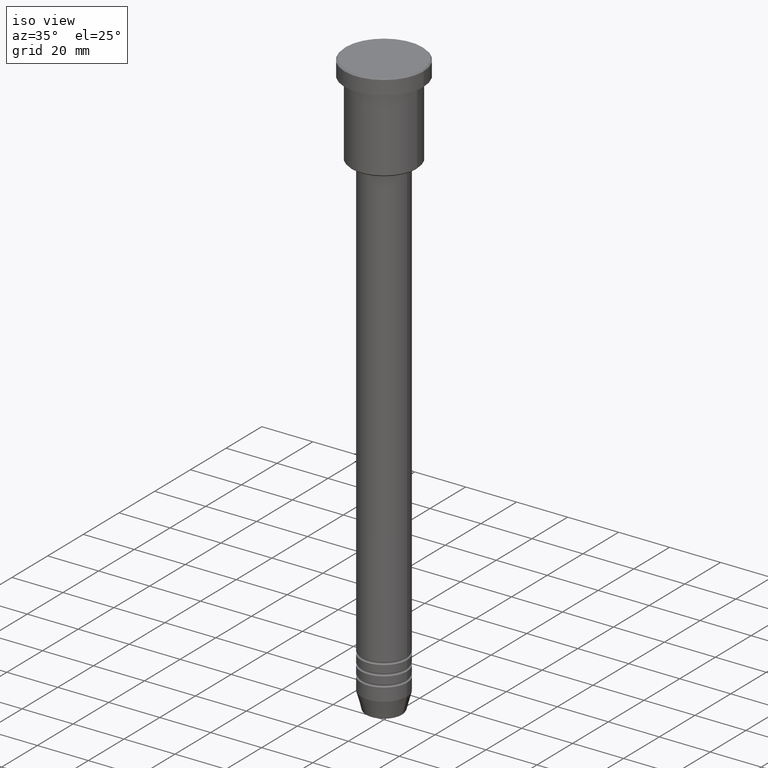
[diagram: clean part render]
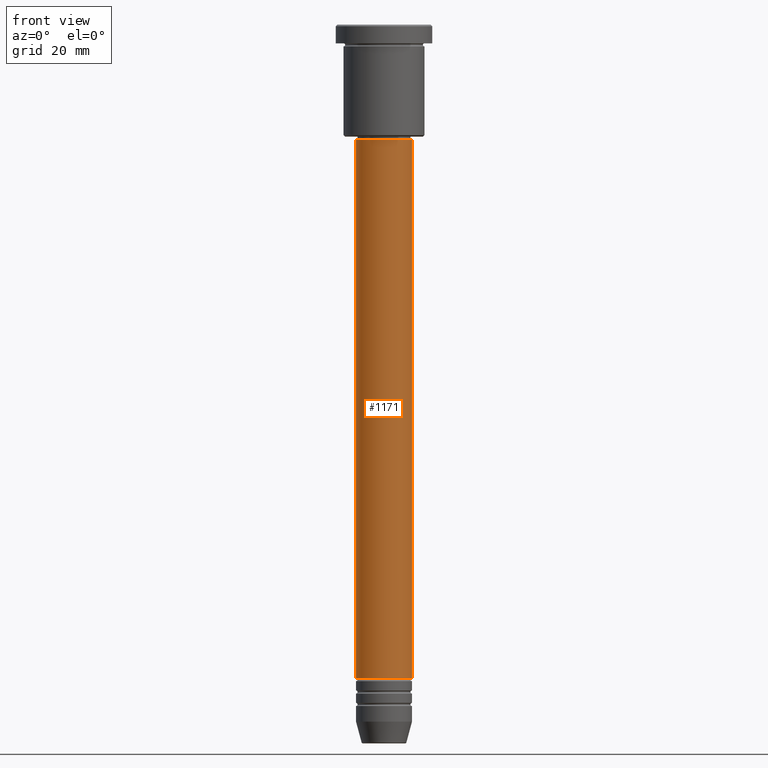
[diagram: tour spotlight — one face highlighted and labeled with its STEP entity id]
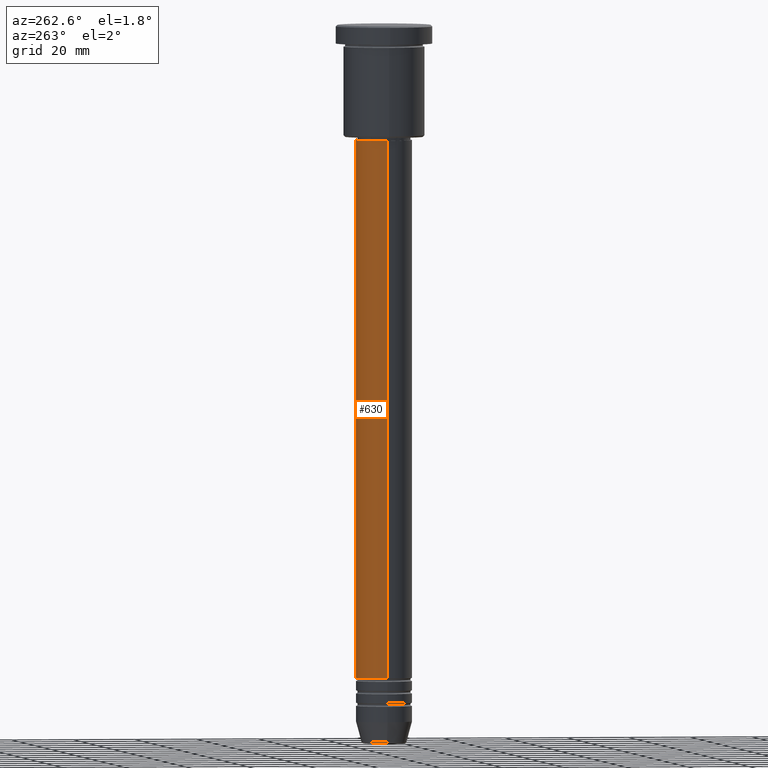
[diagram: tour spotlight — one face highlighted and labeled with its STEP entity id]
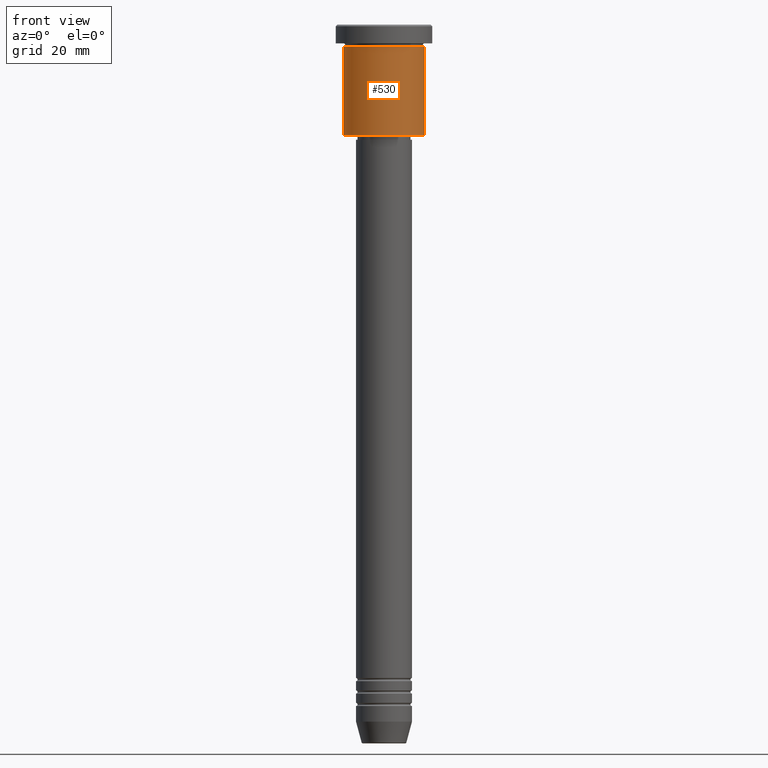
[diagram: tour spotlight — one face highlighted and labeled with its STEP entity id]
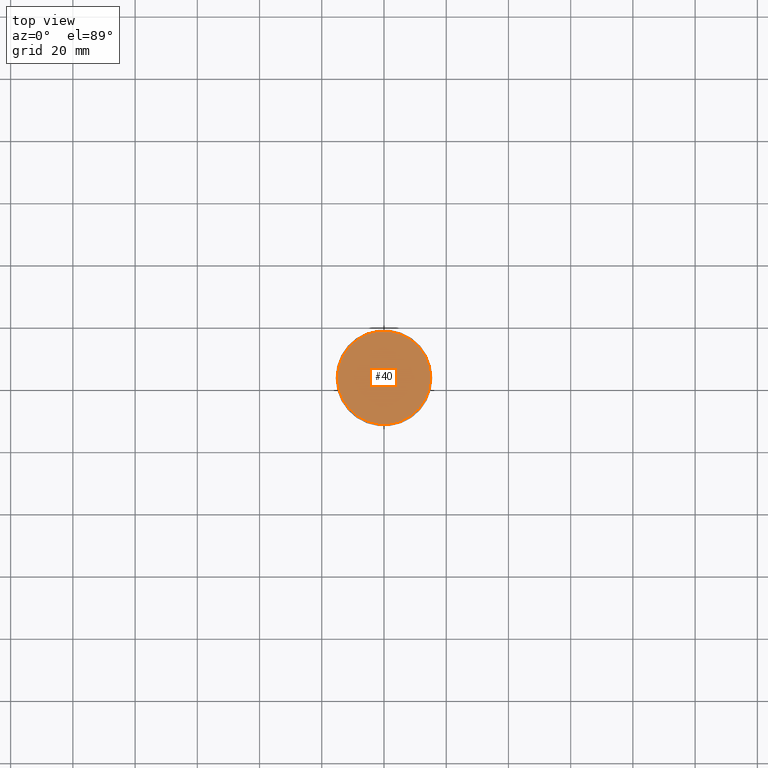
[diagram: tour spotlight — one face highlighted and labeled with its STEP entity id]
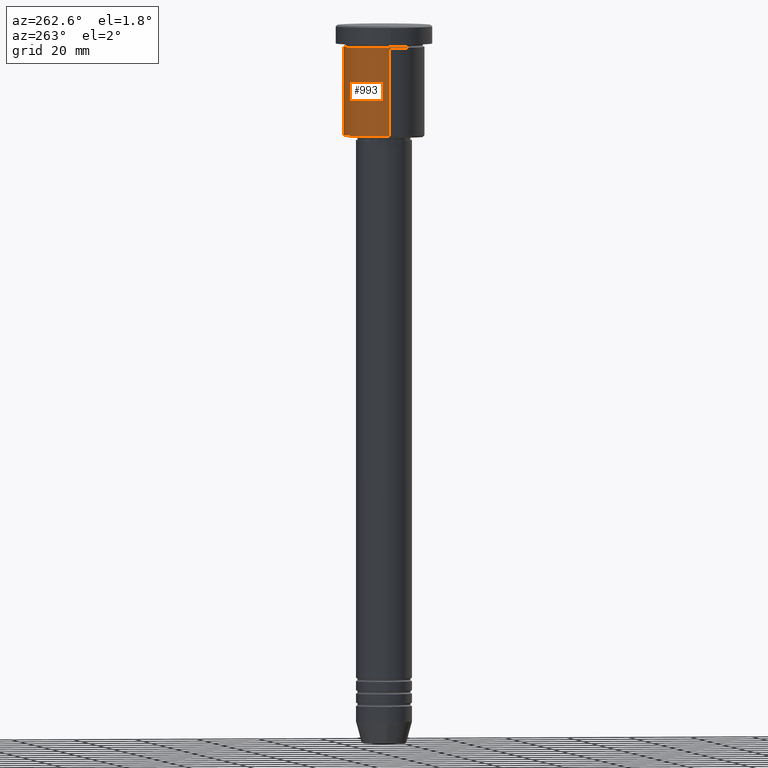
[diagram: tour spotlight — one face highlighted and labeled with its STEP entity id]
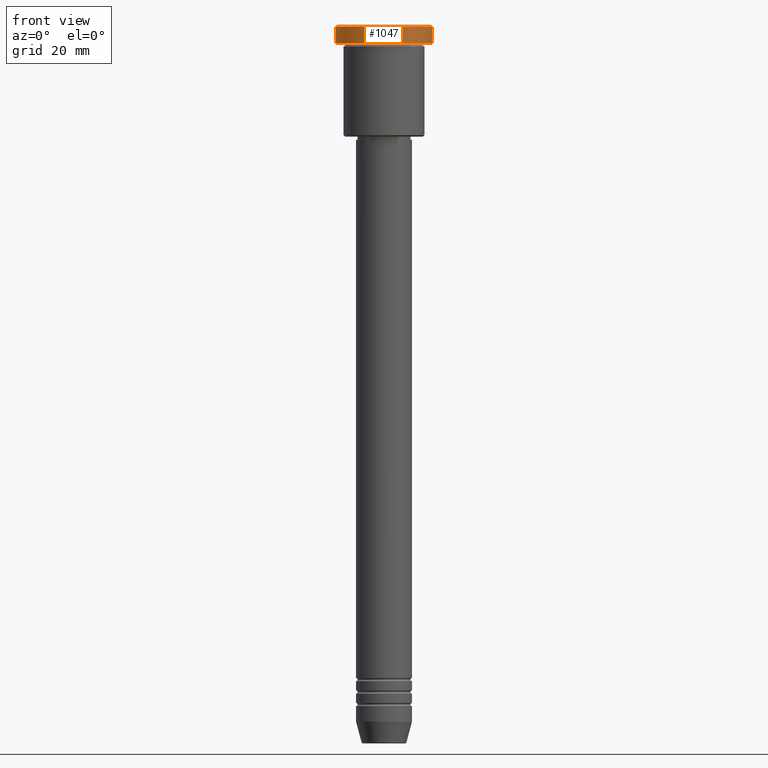
[diagram: tour spotlight — one face highlighted and labeled with its STEP entity id]
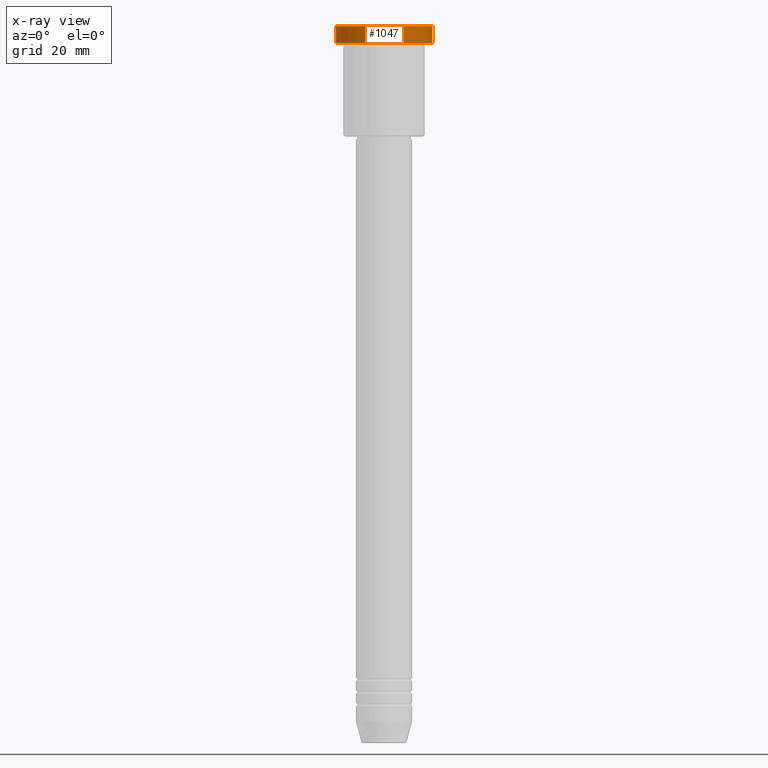
[diagram: x-ray of the same camera — body ghosted, this tour face saturated]
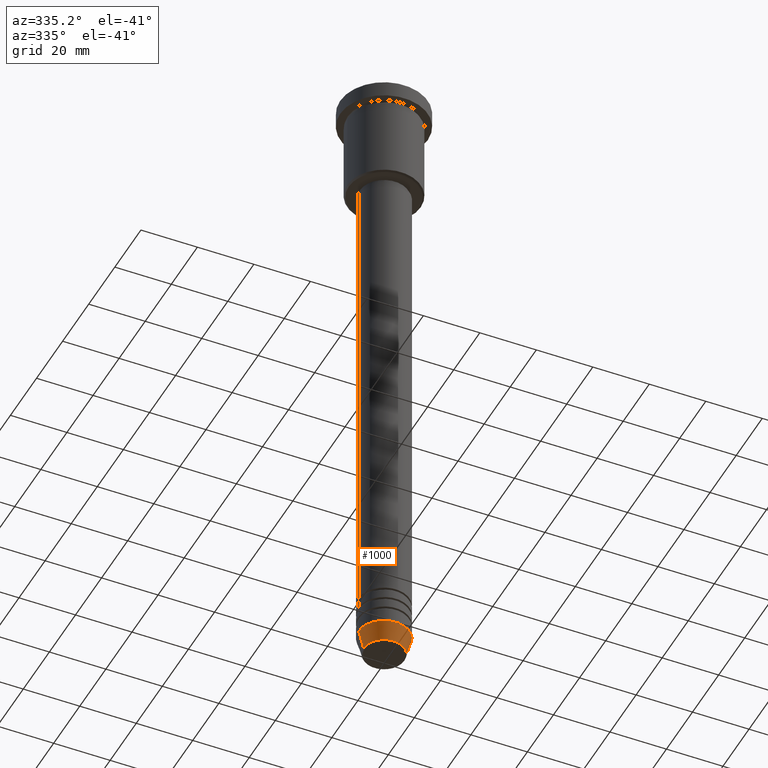
[diagram: tour spotlight — one face highlighted and labeled with its STEP entity id]
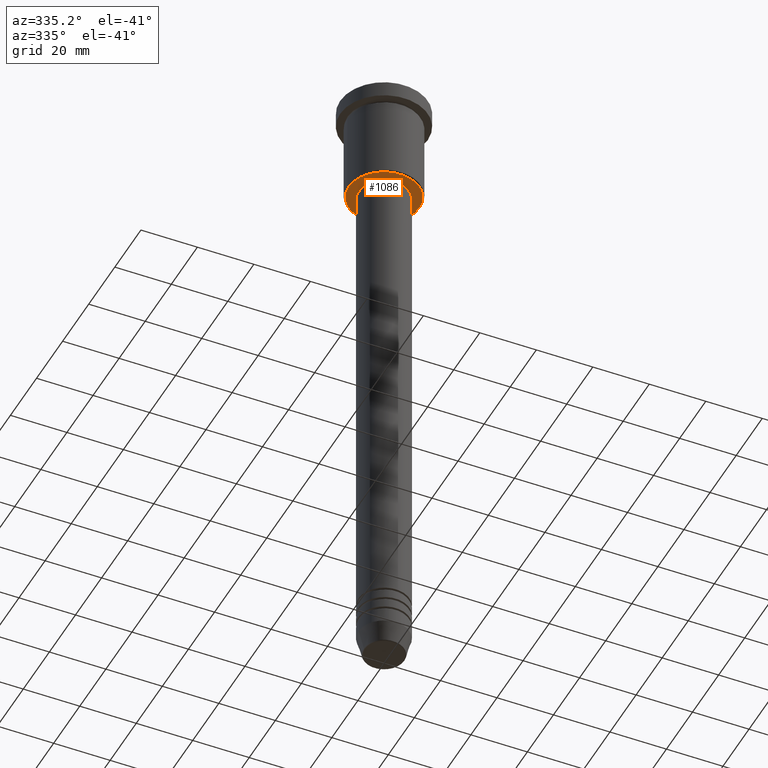
[diagram: tour spotlight — one face highlighted and labeled with its STEP entity id]
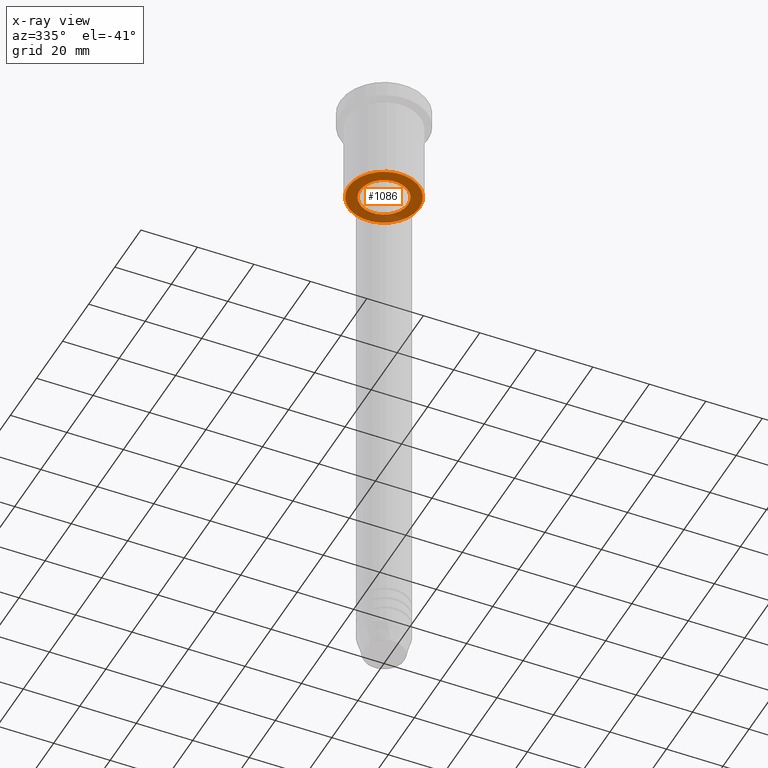
[diagram: x-ray of the same camera — body ghosted, this tour face saturated]
A machine part: a face-by-face anatomy tour. The part has 43 B-rep faces; the first image is the clean iso view, then the 8 largest visible faces are spotlighted one at a time (largest first), each with its STEP entity span.

Face 1 — front view, entity #1171. In plain terms, the highlighted cylindrical surface (edge-blend (fillet) strip) has radius 9 mm, axis along (-0, -0, 1).
Definition (entity closure, byte-faithful):
#2 = DIRECTION ( 'NONE',  ( -0.000000000000000000, -0.000000000000000000, 1.000000000000000000 ) ) ;
#20 = CARTESIAN_POINT ( 'NONE',  ( -9.000000000000001776, 1.102182119232617911E-15, -209.9999999999999432 ) ) ;
#90 = EDGE_CURVE ( 'NONE', #363, #1011, #305, .T. ) ;
#147 = DIRECTION ( 'NONE',  ( -0.000000000000000000, -0.000000000000000000, 1.000000000000000000 ) ) ;
#185 = AXIS2_PLACEMENT_3D ( 'NONE', #768, #1135, #307 ) ;
#292 = CARTESIAN_POINT ( 'NONE',  ( 0.000000000000000000, 0.000000000000000000, -37.00000000000007105 ) ) ;
#301 = CYLINDRICAL_SURFACE ( 'NONE', #1178, 9.000000000000000000 ) ;
#305 = LINE ( 'NONE', #1055, #1052 ) ;
#307 = DIRECTION ( 'NONE',  ( 1.000000000000000000, 0.000000000000000000, 0.000000000000000000 ) ) ;
#315 = CARTESIAN_POINT ( 'NONE',  ( 9.000000000000001776, 0.000000000000000000, -209.9999999999999432 ) ) ;
#341 = CIRCLE ( 'NONE', #798, 8.999999999999998224 ) ;
#361 = VERTEX_POINT ( 'NONE', #1025 ) ;
#363 = VERTEX_POINT ( 'NONE', #20 ) ;
#454 = LINE ( 'NONE', #475, #973 ) ;
#459 = CIRCLE ( 'NONE', #185, 9.000000000000001776 ) ;
#468 = EDGE_CURVE ( 'NONE', #363, #472, #459, .T. ) ;
#472 = VERTEX_POINT ( 'NONE', #315 ) ;
#475 = CARTESIAN_POINT ( 'NONE',  ( 9.000000000000000000, 0.000000000000000000, 0.000000000000000000 ) ) ;
#504 = ORIENTED_EDGE ( 'NONE', *, *, #609, .T. ) ;
#568 = FACE_OUTER_BOUND ( 'NONE', #932, .T. ) ;
#609 = EDGE_CURVE ( 'NONE', #472, #361, #454, .T. ) ;
#740 = ORIENTED_EDGE ( 'NONE', *, *, #1006, .F. ) ;
#768 = CARTESIAN_POINT ( 'NONE',  ( 0.000000000000000000, 0.000000000000000000, -209.9999999999999432 ) ) ;
#798 = AXIS2_PLACEMENT_3D ( 'NONE', #292, #946, #1039 ) ;
#829 = DIRECTION ( 'NONE',  ( 1.000000000000000000, 0.000000000000000000, 0.000000000000000000 ) ) ;
#887 = ORIENTED_EDGE ( 'NONE', *, *, #90, .F. ) ;
#932 = EDGE_LOOP ( 'NONE', ( #887, #976, #504, #740 ) ) ;
#946 = DIRECTION ( 'NONE',  ( -0.000000000000000000, -0.000000000000000000, 1.000000000000000000 ) ) ;
#973 = VECTOR ( 'NONE', #1022, 1000.000000000000000 ) ;
#976 = ORIENTED_EDGE ( 'NONE', *, *, #468, .T. ) ;
#1006 = EDGE_CURVE ( 'NONE', #1011, #361, #341, .T. ) ;
#1011 = VERTEX_POINT ( 'NONE', #1134 ) ;
#1022 = DIRECTION ( 'NONE',  ( -0.000000000000000000, -0.000000000000000000, 1.000000000000000000 ) ) ;
#1025 = CARTESIAN_POINT ( 'NONE',  ( 8.999999999999998224, 0.000000000000000000, -37.00000000000007105 ) ) ;
#1039 = DIRECTION ( 'NONE',  ( 1.000000000000000000, 0.000000000000000000, 0.000000000000000000 ) ) ;
#1042 = CARTESIAN_POINT ( 'NONE',  ( 0.000000000000000000, 0.000000000000000000, 0.000000000000000000 ) ) ;
#1052 = VECTOR ( 'NONE', #147, 1000.000000000000000 ) ;
#1055 = CARTESIAN_POINT ( 'NONE',  ( -9.000000000000000000, 1.102182119232617714E-15, 0.000000000000000000 ) ) ;
#1134 = CARTESIAN_POINT ( 'NONE',  ( -8.999999999999998224, 1.102182119232617714E-15, -37.00000000000007105 ) ) ;
#1135 = DIRECTION ( 'NONE',  ( -0.000000000000000000, -0.000000000000000000, 1.000000000000000000 ) ) ;
#1171 = ADVANCED_FACE ( 'NONE', ( #568 ), #301, .T. ) ;
#1178 = AXIS2_PLACEMENT_3D ( 'NONE', #1042, #2, #829 ) ;

Face 2 — auxiliary view, entity #630. In plain terms, the highlighted cylindrical surface (edge-blend (fillet) strip) has radius 9 mm, axis along (-0, -0, 1).
Definition (entity closure, byte-faithful):
#13 = EDGE_CURVE ( 'NONE', #361, #1011, #415, .T. ) ;
#20 = CARTESIAN_POINT ( 'NONE',  ( -9.000000000000001776, 1.102182119232617911E-15, -209.9999999999999432 ) ) ;
#34 = CARTESIAN_POINT ( 'NONE',  ( 0.000000000000000000, 0.000000000000000000, -37.00000000000007105 ) ) ;
#90 = EDGE_CURVE ( 'NONE', #363, #1011, #305, .T. ) ;
#147 = DIRECTION ( 'NONE',  ( -0.000000000000000000, -0.000000000000000000, 1.000000000000000000 ) ) ;
#174 = CARTESIAN_POINT ( 'NONE',  ( 0.000000000000000000, 0.000000000000000000, 0.000000000000000000 ) ) ;
#223 = DIRECTION ( 'NONE',  ( 1.000000000000000000, 0.000000000000000000, 0.000000000000000000 ) ) ;
#227 = DIRECTION ( 'NONE',  ( 1.000000000000000000, 0.000000000000000000, 0.000000000000000000 ) ) ;
#239 = AXIS2_PLACEMENT_3D ( 'NONE', #174, #264, #645 ) ;
#260 = CYLINDRICAL_SURFACE ( 'NONE', #239, 9.000000000000000000 ) ;
#264 = DIRECTION ( 'NONE',  ( -0.000000000000000000, -0.000000000000000000, 1.000000000000000000 ) ) ;
#305 = LINE ( 'NONE', #1055, #1052 ) ;
#315 = CARTESIAN_POINT ( 'NONE',  ( 9.000000000000001776, 0.000000000000000000, -209.9999999999999432 ) ) ;
#361 = VERTEX_POINT ( 'NONE', #1025 ) ;
#363 = VERTEX_POINT ( 'NONE', #20 ) ;
#415 = CIRCLE ( 'NONE', #592, 8.999999999999998224 ) ;
#430 = ORIENTED_EDGE ( 'NONE', *, *, #1137, .T. ) ;
#450 = ORIENTED_EDGE ( 'NONE', *, *, #609, .F. ) ;
#454 = LINE ( 'NONE', #475, #973 ) ;
#472 = VERTEX_POINT ( 'NONE', #315 ) ;
#475 = CARTESIAN_POINT ( 'NONE',  ( 9.000000000000000000, 0.000000000000000000, 0.000000000000000000 ) ) ;
#519 = AXIS2_PLACEMENT_3D ( 'NONE', #689, #957, #227 ) ;
#592 = AXIS2_PLACEMENT_3D ( 'NONE', #34, #1038, #223 ) ;
#609 = EDGE_CURVE ( 'NONE', #472, #361, #454, .T. ) ;
#630 = ADVANCED_FACE ( 'NONE', ( #998 ), #260, .T. ) ;
#645 = DIRECTION ( 'NONE',  ( 1.000000000000000000, 0.000000000000000000, 0.000000000000000000 ) ) ;
#657 = CIRCLE ( 'NONE', #519, 9.000000000000001776 ) ;
#689 = CARTESIAN_POINT ( 'NONE',  ( 0.000000000000000000, 0.000000000000000000, -209.9999999999999432 ) ) ;
#838 = ORIENTED_EDGE ( 'NONE', *, *, #90, .T. ) ;
#957 = DIRECTION ( 'NONE',  ( -0.000000000000000000, -0.000000000000000000, 1.000000000000000000 ) ) ;
#973 = VECTOR ( 'NONE', #1022, 1000.000000000000000 ) ;
#998 = FACE_OUTER_BOUND ( 'NONE', #1050, .T. ) ;
#1011 = VERTEX_POINT ( 'NONE', #1134 ) ;
#1022 = DIRECTION ( 'NONE',  ( -0.000000000000000000, -0.000000000000000000, 1.000000000000000000 ) ) ;
#1025 = CARTESIAN_POINT ( 'NONE',  ( 8.999999999999998224, 0.000000000000000000, -37.00000000000007105 ) ) ;
#1038 = DIRECTION ( 'NONE',  ( -0.000000000000000000, -0.000000000000000000, 1.000000000000000000 ) ) ;
#1043 = ORIENTED_EDGE ( 'NONE', *, *, #13, .F. ) ;
#1050 = EDGE_LOOP ( 'NONE', ( #430, #838, #1043, #450 ) ) ;
#1052 = VECTOR ( 'NONE', #147, 1000.000000000000000 ) ;
#1055 = CARTESIAN_POINT ( 'NONE',  ( -9.000000000000000000, 1.102182119232617714E-15, 0.000000000000000000 ) ) ;
#1134 = CARTESIAN_POINT ( 'NONE',  ( -8.999999999999998224, 1.102182119232617714E-15, -37.00000000000007105 ) ) ;
#1137 = EDGE_CURVE ( 'NONE', #472, #363, #657, .T. ) ;

Face 3 — front view, entity #530. In plain terms, the highlighted cylindrical surface (partial cylindrical patch) has radius 13 mm, axis along (-0, -0, 1).
Definition (entity closure, byte-faithful):
#29 = VERTEX_POINT ( 'NONE', #875 ) ;
#31 = VECTOR ( 'NONE', #195, 1000.000000000000000 ) ;
#125 = AXIS2_PLACEMENT_3D ( 'NONE', #169, #1062, #979 ) ;
#141 = ORIENTED_EDGE ( 'NONE', *, *, #246, .F. ) ;
#158 = FACE_OUTER_BOUND ( 'NONE', #938, .T. ) ;
#169 = CARTESIAN_POINT ( 'NONE',  ( 0.000000000000000000, 0.000000000000000000, -35.50000000000005684 ) ) ;
#195 = DIRECTION ( 'NONE',  ( -0.000000000000000000, -0.000000000000000000, 1.000000000000000000 ) ) ;
#245 = ORIENTED_EDGE ( 'NONE', *, *, #983, .T. ) ;
#246 = EDGE_CURVE ( 'NONE', #1179, #690, #455, .T. ) ;
#249 = VERTEX_POINT ( 'NONE', #1003 ) ;
#275 = CARTESIAN_POINT ( 'NONE',  ( 0.000000000000000000, 0.000000000000000000, -6.999999999999995559 ) ) ;
#320 = CIRCLE ( 'NONE', #934, 13.00000000000000178 ) ;
#347 = DIRECTION ( 'NONE',  ( 1.000000000000000000, 0.000000000000000000, 0.000000000000000000 ) ) ;
#442 = DIRECTION ( 'NONE',  ( -0.000000000000000000, -0.000000000000000000, 1.000000000000000000 ) ) ;
#444 = DIRECTION ( 'NONE',  ( 1.000000000000000000, 0.000000000000000000, 0.000000000000000000 ) ) ;
#455 = LINE ( 'NONE', #646, #691 ) ;
#471 = CARTESIAN_POINT ( 'NONE',  ( -13.00000000000000178, 1.592040838891559293E-15, -35.50000000000005684 ) ) ;
#483 = LINE ( 'NONE', #1033, #31 ) ;
#530 = ADVANCED_FACE ( 'NONE', ( #158 ), #883, .T. ) ;
#531 = CARTESIAN_POINT ( 'NONE',  ( 0.000000000000000000, 0.000000000000000000, 0.000000000000000000 ) ) ;
#589 = EDGE_CURVE ( 'NONE', #1179, #249, #876, .T. ) ;
#646 = CARTESIAN_POINT ( 'NONE',  ( -13.00000000000000178, 1.592040838891559293E-15, 0.000000000000000000 ) ) ;
#664 = ORIENTED_EDGE ( 'NONE', *, *, #907, .F. ) ;
#690 = VERTEX_POINT ( 'NONE', #1168 ) ;
#691 = VECTOR ( 'NONE', #817, 1000.000000000000000 ) ;
#817 = DIRECTION ( 'NONE',  ( -0.000000000000000000, -0.000000000000000000, 1.000000000000000000 ) ) ;
#875 = CARTESIAN_POINT ( 'NONE',  ( 13.00000000000000178, 0.000000000000000000, -6.999999999999995559 ) ) ;
#876 = CIRCLE ( 'NONE', #125, 13.00000000000000178 ) ;
#883 = CYLINDRICAL_SURFACE ( 'NONE', #1160, 13.00000000000000178 ) ;
#907 = EDGE_CURVE ( 'NONE', #690, #29, #320, .T. ) ;
#927 = ORIENTED_EDGE ( 'NONE', *, *, #589, .T. ) ;
#934 = AXIS2_PLACEMENT_3D ( 'NONE', #275, #1108, #444 ) ;
#938 = EDGE_LOOP ( 'NONE', ( #141, #927, #245, #664 ) ) ;
#979 = DIRECTION ( 'NONE',  ( -1.000000000000000000, 0.000000000000000000, 0.000000000000000000 ) ) ;
#983 = EDGE_CURVE ( 'NONE', #249, #29, #483, .T. ) ;
#1003 = CARTESIAN_POINT ( 'NONE',  ( 13.00000000000000178, 0.000000000000000000, -35.50000000000005684 ) ) ;
#1033 = CARTESIAN_POINT ( 'NONE',  ( 13.00000000000000178, 0.000000000000000000, 0.000000000000000000 ) ) ;
#1062 = DIRECTION ( 'NONE',  ( -0.000000000000000000, -0.000000000000000000, 1.000000000000000000 ) ) ;
#1108 = DIRECTION ( 'NONE',  ( -0.000000000000000000, -0.000000000000000000, 1.000000000000000000 ) ) ;
#1160 = AXIS2_PLACEMENT_3D ( 'NONE', #531, #442, #347 ) ;
#1168 = CARTESIAN_POINT ( 'NONE',  ( -13.00000000000000178, 1.592040838891559293E-15, -6.999999999999995559 ) ) ;
#1179 = VERTEX_POINT ( 'NONE', #471 ) ;

Face 4 — top view, entity #40. In plain terms, the highlighted planar face has unit normal (0, -0, 1).
Definition (entity closure, byte-faithful):
#40 = ADVANCED_FACE ( 'NONE', ( #491 ), #952, .T. ) ;
#46 = ORIENTED_EDGE ( 'NONE', *, *, #667, .T. ) ;
#57 = CARTESIAN_POINT ( 'NONE',  ( 0.000000000000000000, 0.000000000000000000, 0.000000000000000000 ) ) ;
#152 = DIRECTION ( 'NONE',  ( 1.000000000000000000, 0.000000000000000000, 0.000000000000000000 ) ) ;
#339 = CIRCLE ( 'NONE', #495, 14.99999999999998579 ) ;
#351 = DIRECTION ( 'NONE',  ( -0.000000000000000000, -0.000000000000000000, 1.000000000000000000 ) ) ;
#404 = CARTESIAN_POINT ( 'NONE',  ( 14.99999999999998579, 1.867586368699712587E-15, 0.000000000000000000 ) ) ;
#414 = DIRECTION ( 'NONE',  ( 0.000000000000000000, -0.000000000000000000, 1.000000000000000000 ) ) ;
#422 = DIRECTION ( 'NONE',  ( 1.000000000000000000, 0.000000000000000000, 0.000000000000000000 ) ) ;
#456 = VERTEX_POINT ( 'NONE', #404 ) ;
#476 = DIRECTION ( 'NONE',  ( -0.000000000000000000, -0.000000000000000000, 1.000000000000000000 ) ) ;
#491 = FACE_OUTER_BOUND ( 'NONE', #965, .T. ) ;
#495 = AXIS2_PLACEMENT_3D ( 'NONE', #1017, #476, #1112 ) ;
#595 = CIRCLE ( 'NONE', #1105, 14.99999999999998579 ) ;
#656 = CARTESIAN_POINT ( 'NONE',  ( -14.99999999999998579, 0.000000000000000000, 0.000000000000000000 ) ) ;
#667 = EDGE_CURVE ( 'NONE', #456, #849, #595, .T. ) ;
#737 = ORIENTED_EDGE ( 'NONE', *, *, #778, .T. ) ;
#778 = EDGE_CURVE ( 'NONE', #849, #456, #339, .T. ) ;
#794 = CARTESIAN_POINT ( 'NONE',  ( 0.000000000000000000, 0.000000000000000000, 0.000000000000000000 ) ) ;
#849 = VERTEX_POINT ( 'NONE', #656 ) ;
#952 = PLANE ( 'NONE',  #1051 ) ;
#965 = EDGE_LOOP ( 'NONE', ( #737, #46 ) ) ;
#1017 = CARTESIAN_POINT ( 'NONE',  ( 0.000000000000000000, 0.000000000000000000, 0.000000000000000000 ) ) ;
#1051 = AXIS2_PLACEMENT_3D ( 'NONE', #57, #414, #422 ) ;
#1105 = AXIS2_PLACEMENT_3D ( 'NONE', #794, #351, #152 ) ;
#1112 = DIRECTION ( 'NONE',  ( 1.000000000000000000, 0.000000000000000000, 0.000000000000000000 ) ) ;

Face 5 — auxiliary view, entity #993. In plain terms, the highlighted cylindrical surface (partial cylindrical patch) has radius 13 mm, axis along (-0, -0, 1).
Definition (entity closure, byte-faithful):
#29 = VERTEX_POINT ( 'NONE', #875 ) ;
#31 = VECTOR ( 'NONE', #195, 1000.000000000000000 ) ;
#68 = CARTESIAN_POINT ( 'NONE',  ( 0.000000000000000000, 0.000000000000000000, -35.50000000000005684 ) ) ;
#103 = CYLINDRICAL_SURFACE ( 'NONE', #716, 13.00000000000000178 ) ;
#183 = EDGE_CURVE ( 'NONE', #29, #690, #1159, .T. ) ;
#195 = DIRECTION ( 'NONE',  ( -0.000000000000000000, -0.000000000000000000, 1.000000000000000000 ) ) ;
#202 = AXIS2_PLACEMENT_3D ( 'NONE', #68, #909, #803 ) ;
#246 = EDGE_CURVE ( 'NONE', #1179, #690, #455, .T. ) ;
#249 = VERTEX_POINT ( 'NONE', #1003 ) ;
#317 = CIRCLE ( 'NONE', #202, 13.00000000000000178 ) ;
#370 = DIRECTION ( 'NONE',  ( -0.000000000000000000, -0.000000000000000000, 1.000000000000000000 ) ) ;
#381 = DIRECTION ( 'NONE',  ( -0.000000000000000000, -0.000000000000000000, 1.000000000000000000 ) ) ;
#455 = LINE ( 'NONE', #646, #691 ) ;
#471 = CARTESIAN_POINT ( 'NONE',  ( -13.00000000000000178, 1.592040838891559293E-15, -35.50000000000005684 ) ) ;
#479 = CARTESIAN_POINT ( 'NONE',  ( 0.000000000000000000, 0.000000000000000000, 0.000000000000000000 ) ) ;
#483 = LINE ( 'NONE', #1033, #31 ) ;
#569 = ORIENTED_EDGE ( 'NONE', *, *, #183, .F. ) ;
#646 = CARTESIAN_POINT ( 'NONE',  ( -13.00000000000000178, 1.592040838891559293E-15, 0.000000000000000000 ) ) ;
#655 = EDGE_CURVE ( 'NONE', #249, #1179, #317, .T. ) ;
#670 = DIRECTION ( 'NONE',  ( 1.000000000000000000, 0.000000000000000000, 0.000000000000000000 ) ) ;
#690 = VERTEX_POINT ( 'NONE', #1168 ) ;
#691 = VECTOR ( 'NONE', #817, 1000.000000000000000 ) ;
#716 = AXIS2_PLACEMENT_3D ( 'NONE', #479, #381, #936 ) ;
#776 = AXIS2_PLACEMENT_3D ( 'NONE', #1005, #370, #670 ) ;
#803 = DIRECTION ( 'NONE',  ( -1.000000000000000000, 0.000000000000000000, 0.000000000000000000 ) ) ;
#817 = DIRECTION ( 'NONE',  ( -0.000000000000000000, -0.000000000000000000, 1.000000000000000000 ) ) ;
#875 = CARTESIAN_POINT ( 'NONE',  ( 13.00000000000000178, 0.000000000000000000, -6.999999999999995559 ) ) ;
#880 = ORIENTED_EDGE ( 'NONE', *, *, #246, .T. ) ;
#909 = DIRECTION ( 'NONE',  ( -0.000000000000000000, -0.000000000000000000, 1.000000000000000000 ) ) ;
#923 = ORIENTED_EDGE ( 'NONE', *, *, #655, .T. ) ;
#929 = FACE_OUTER_BOUND ( 'NONE', #986, .T. ) ;
#936 = DIRECTION ( 'NONE',  ( 1.000000000000000000, 0.000000000000000000, 0.000000000000000000 ) ) ;
#983 = EDGE_CURVE ( 'NONE', #249, #29, #483, .T. ) ;
#986 = EDGE_LOOP ( 'NONE', ( #923, #880, #569, #1153 ) ) ;
#993 = ADVANCED_FACE ( 'NONE', ( #929 ), #103, .T. ) ;
#1003 = CARTESIAN_POINT ( 'NONE',  ( 13.00000000000000178, 0.000000000000000000, -35.50000000000005684 ) ) ;
#1005 = CARTESIAN_POINT ( 'NONE',  ( 0.000000000000000000, 0.000000000000000000, -6.999999999999995559 ) ) ;
#1033 = CARTESIAN_POINT ( 'NONE',  ( 13.00000000000000178, 0.000000000000000000, 0.000000000000000000 ) ) ;
#1153 = ORIENTED_EDGE ( 'NONE', *, *, #983, .F. ) ;
#1159 = CIRCLE ( 'NONE', #776, 13.00000000000000178 ) ;
#1168 = CARTESIAN_POINT ( 'NONE',  ( -13.00000000000000178, 1.592040838891559293E-15, -6.999999999999995559 ) ) ;
#1179 = VERTEX_POINT ( 'NONE', #471 ) ;

Face 6 — front view, entity #1047. An x-ray twin of the same camera follows (body ghosted, this face saturated) — the face is partly hidden behind the body. In plain terms, the highlighted cylindrical surface (partial cylindrical patch) has radius 15.5 mm, axis along (-0, -0, 1).
Definition (entity closure, byte-faithful):
#33 = AXIS2_PLACEMENT_3D ( 'NONE', #1024, #207, #394 ) ;
#45 = DIRECTION ( 'NONE',  ( -0.000000000000000000, -0.000000000000000000, 1.000000000000000000 ) ) ;
#51 = CARTESIAN_POINT ( 'NONE',  ( -15.50000000000000000, 1.898202538678397557E-15, -5.999999999999995559 ) ) ;
#61 = EDGE_LOOP ( 'NONE', ( #150, #87, #488, #842 ) ) ;
#87 = ORIENTED_EDGE ( 'NONE', *, *, #1152, .T. ) ;
#127 = VECTOR ( 'NONE', #201, 1000.000000000000000 ) ;
#150 = ORIENTED_EDGE ( 'NONE', *, *, #754, .F. ) ;
#201 = DIRECTION ( 'NONE',  ( -0.000000000000000000, -0.000000000000000000, 1.000000000000000000 ) ) ;
#207 = DIRECTION ( 'NONE',  ( -0.000000000000000000, -0.000000000000000000, 1.000000000000000000 ) ) ;
#250 = CARTESIAN_POINT ( 'NONE',  ( -15.50000000000000000, 1.898202538678397557E-15, -0.5000000000000125455 ) ) ;
#323 = CARTESIAN_POINT ( 'NONE',  ( 0.000000000000000000, 0.000000000000000000, -0.5000000000000125455 ) ) ;
#359 = CARTESIAN_POINT ( 'NONE',  ( -15.50000000000000000, 1.898202538678397557E-15, 0.000000000000000000 ) ) ;
#394 = DIRECTION ( 'NONE',  ( 1.000000000000000000, 0.000000000000000000, 0.000000000000000000 ) ) ;
#421 = VECTOR ( 'NONE', #893, 1000.000000000000000 ) ;
#424 = VERTEX_POINT ( 'NONE', #503 ) ;
#427 = DIRECTION ( 'NONE',  ( 0.000000000000000000, 0.000000000000000000, -1.000000000000000000 ) ) ;
#449 = DIRECTION ( 'NONE',  ( 1.000000000000000000, 0.000000000000000000, 0.000000000000000000 ) ) ;
#488 = ORIENTED_EDGE ( 'NONE', *, *, #944, .T. ) ;
#492 = AXIS2_PLACEMENT_3D ( 'NONE', #323, #427, #449 ) ;
#500 = AXIS2_PLACEMENT_3D ( 'NONE', #866, #45, #964 ) ;
#503 = CARTESIAN_POINT ( 'NONE',  ( 15.50000000000000000, 0.000000000000000000, -5.999999999999995559 ) ) ;
#534 = LINE ( 'NONE', #359, #421 ) ;
#561 = EDGE_CURVE ( 'NONE', #709, #885, #714, .T. ) ;
#585 = CARTESIAN_POINT ( 'NONE',  ( 15.50000000000000000, 0.000000000000000000, 0.000000000000000000 ) ) ;
#675 = FACE_OUTER_BOUND ( 'NONE', #61, .T. ) ;
#698 = CIRCLE ( 'NONE', #500, 15.50000000000000000 ) ;
#709 = VERTEX_POINT ( 'NONE', #1161 ) ;
#714 = CIRCLE ( 'NONE', #492, 15.50000000000000000 ) ;
#754 = EDGE_CURVE ( 'NONE', #1107, #885, #534, .T. ) ;
#842 = ORIENTED_EDGE ( 'NONE', *, *, #561, .T. ) ;
#866 = CARTESIAN_POINT ( 'NONE',  ( 0.000000000000000000, 0.000000000000000000, -5.999999999999995559 ) ) ;
#885 = VERTEX_POINT ( 'NONE', #250 ) ;
#893 = DIRECTION ( 'NONE',  ( -0.000000000000000000, -0.000000000000000000, 1.000000000000000000 ) ) ;
#944 = EDGE_CURVE ( 'NONE', #424, #709, #985, .T. ) ;
#955 = CYLINDRICAL_SURFACE ( 'NONE', #33, 15.50000000000000000 ) ;
#964 = DIRECTION ( 'NONE',  ( 1.000000000000000000, 0.000000000000000000, 0.000000000000000000 ) ) ;
#985 = LINE ( 'NONE', #585, #127 ) ;
#1024 = CARTESIAN_POINT ( 'NONE',  ( 0.000000000000000000, 0.000000000000000000, 0.000000000000000000 ) ) ;
#1047 = ADVANCED_FACE ( 'NONE', ( #675 ), #955, .T. ) ;
#1107 = VERTEX_POINT ( 'NONE', #51 ) ;
#1152 = EDGE_CURVE ( 'NONE', #1107, #424, #698, .T. ) ;
#1161 = CARTESIAN_POINT ( 'NONE',  ( 15.50000000000000000, 0.000000000000000000, -0.5000000000000125455 ) ) ;

Face 7 — auxiliary view, entity #1000. In plain terms, the highlighted conical surface has half-angle 15 deg.
Definition (entity closure, byte-faithful):
#18 = EDGE_CURVE ( 'NONE', #332, #527, #71, .T. ) ;
#26 = CIRCLE ( 'NONE', #124, 7.223655072137188604 ) ;
#71 = CIRCLE ( 'NONE', #367, 9.000000000000000000 ) ;
#85 = DIRECTION ( 'NONE',  ( -0.000000000000000000, -0.000000000000000000, 1.000000000000000000 ) ) ;
#124 = AXIS2_PLACEMENT_3D ( 'NONE', #543, #85, #426 ) ;
#138 = EDGE_CURVE ( 'NONE', #1016, #532, #26, .T. ) ;
#139 = DIRECTION ( 'NONE',  ( 1.000000000000000000, 0.000000000000000000, 0.000000000000000000 ) ) ;
#146 = CONICAL_SURFACE ( 'NONE', #854, 9.000000000000000000, 0.2617993877991500740 ) ;
#151 = ORIENTED_EDGE ( 'NONE', *, *, #18, .F. ) ;
#205 = EDGE_LOOP ( 'NONE', ( #601, #862, #744, #151 ) ) ;
#332 = VERTEX_POINT ( 'NONE', #649 ) ;
#367 = AXIS2_PLACEMENT_3D ( 'NONE', #945, #512, #139 ) ;
#403 = DIRECTION ( 'NONE',  ( 1.000000000000000000, 0.000000000000000000, 0.000000000000000000 ) ) ;
#426 = DIRECTION ( 'NONE',  ( 1.000000000000000000, 0.000000000000000000, 0.000000000000000000 ) ) ;
#512 = DIRECTION ( 'NONE',  ( -0.000000000000000000, -0.000000000000000000, 1.000000000000000000 ) ) ;
#515 = VECTOR ( 'NONE', #637, 1000.000000000000000 ) ;
#527 = VERTEX_POINT ( 'NONE', #975 ) ;
#532 = VERTEX_POINT ( 'NONE', #712 ) ;
#543 = CARTESIAN_POINT ( 'NONE',  ( 0.000000000000000000, 0.000000000000000000, -230.6294095225513274 ) ) ;
#601 = ORIENTED_EDGE ( 'NONE', *, *, #725, .F. ) ;
#637 = DIRECTION ( 'NONE',  ( -0.2588190451025213501, 3.169619151431772337E-17, 0.9659258262890680902 ) ) ;
#649 = CARTESIAN_POINT ( 'NONE',  ( -9.000000000000000000, 1.102182119232617714E-15, -224.0000000000000284 ) ) ;
#687 = LINE ( 'NONE', #1129, #1177 ) ;
#712 = CARTESIAN_POINT ( 'NONE',  ( 7.223655072137188604, 0.000000000000000000, -230.6294095225513274 ) ) ;
#721 = CARTESIAN_POINT ( 'NONE',  ( -9.000000000000000000, 1.102182119232617714E-15, -224.0000000000000284 ) ) ;
#725 = EDGE_CURVE ( 'NONE', #1016, #332, #735, .T. ) ;
#735 = LINE ( 'NONE', #721, #515 ) ;
#744 = ORIENTED_EDGE ( 'NONE', *, *, #966, .T. ) ;
#771 = DIRECTION ( 'NONE',  ( -0.000000000000000000, -0.000000000000000000, 1.000000000000000000 ) ) ;
#836 = CARTESIAN_POINT ( 'NONE',  ( 0.000000000000000000, 0.000000000000000000, -224.0000000000000284 ) ) ;
#840 = FACE_OUTER_BOUND ( 'NONE', #205, .T. ) ;
#854 = AXIS2_PLACEMENT_3D ( 'NONE', #836, #771, #403 ) ;
#862 = ORIENTED_EDGE ( 'NONE', *, *, #138, .T. ) ;
#864 = DIRECTION ( 'NONE',  ( 0.2588190451025213501, 0.000000000000000000, 0.9659258262890680902 ) ) ;
#945 = CARTESIAN_POINT ( 'NONE',  ( 0.000000000000000000, 0.000000000000000000, -224.0000000000000284 ) ) ;
#966 = EDGE_CURVE ( 'NONE', #532, #527, #687, .T. ) ;
#975 = CARTESIAN_POINT ( 'NONE',  ( 9.000000000000000000, 0.000000000000000000, -224.0000000000000284 ) ) ;
#1000 = ADVANCED_FACE ( 'NONE', ( #840 ), #146, .T. ) ;
#1016 = VERTEX_POINT ( 'NONE', #1114 ) ;
#1114 = CARTESIAN_POINT ( 'NONE',  ( -7.223655072137189492, 9.934123627281765110E-16, -230.6294095225513274 ) ) ;
#1129 = CARTESIAN_POINT ( 'NONE',  ( 9.000000000000000000, 0.000000000000000000, -224.0000000000000284 ) ) ;
#1177 = VECTOR ( 'NONE', #864, 1000.000000000000000 ) ;

Face 8 — auxiliary view, entity #1086. An x-ray twin of the same camera follows (body ghosted, this face saturated) — the face is partly hidden behind the body. In plain terms, the highlighted planar face has unit normal (0, 0, -1).
Definition (entity closure, byte-faithful):
#43 = FACE_BOUND ( 'NONE', #756, .T. ) ;
#81 = CARTESIAN_POINT ( 'NONE',  ( -12.50000000000001066, 1.561424668912876097E-15, -36.00000000000003553 ) ) ;
#106 = AXIS2_PLACEMENT_3D ( 'NONE', #540, #526, #1018 ) ;
#109 = DIRECTION ( 'NONE',  ( -0.000000000000000000, -0.000000000000000000, 1.000000000000000000 ) ) ;
#168 = AXIS2_PLACEMENT_3D ( 'NONE', #522, #877, #785 ) ;
#175 = CARTESIAN_POINT ( 'NONE',  ( 12.50000000000001066, 0.000000000000000000, -36.00000000000003553 ) ) ;
#176 = ORIENTED_EDGE ( 'NONE', *, *, #241, .T. ) ;
#241 = EDGE_CURVE ( 'NONE', #295, #699, #256, .T. ) ;
#256 = CIRCLE ( 'NONE', #393, 12.50000000000001066 ) ;
#295 = VERTEX_POINT ( 'NONE', #175 ) ;
#308 = DIRECTION ( 'NONE',  ( -1.000000000000000000, 0.000000000000000000, 0.000000000000000000 ) ) ;
#343 = CIRCLE ( 'NONE', #799, 12.50000000000001066 ) ;
#373 = CIRCLE ( 'NONE', #106, 8.500000000000000000 ) ;
#393 = AXIS2_PLACEMENT_3D ( 'NONE', #925, #999, #554 ) ;
#405 = CARTESIAN_POINT ( 'NONE',  ( 0.000000000000000000, 0.000000000000000000, -36.00000000000003553 ) ) ;
#480 = VERTEX_POINT ( 'NONE', #688 ) ;
#502 = FACE_OUTER_BOUND ( 'NONE', #710, .T. ) ;
#522 = CARTESIAN_POINT ( 'NONE',  ( 0.000000000000000000, 13.00000000000000000, -36.00000000000003553 ) ) ;
#526 = DIRECTION ( 'NONE',  ( -0.000000000000000000, -0.000000000000000000, 1.000000000000000000 ) ) ;
#540 = CARTESIAN_POINT ( 'NONE',  ( 0.000000000000000000, 0.000000000000000000, -36.00000000000003553 ) ) ;
#554 = DIRECTION ( 'NONE',  ( -1.000000000000000000, 0.000000000000000000, 0.000000000000000000 ) ) ;
#571 = CARTESIAN_POINT ( 'NONE',  ( 0.000000000000000000, 0.000000000000000000, -36.00000000000003553 ) ) ;
#622 = ORIENTED_EDGE ( 'NONE', *, *, #1120, .T. ) ;
#688 = CARTESIAN_POINT ( 'NONE',  ( 8.500000000000000000, 0.000000000000000000, -36.00000000000003553 ) ) ;
#699 = VERTEX_POINT ( 'NONE', #81 ) ;
#710 = EDGE_LOOP ( 'NONE', ( #176, #622 ) ) ;
#752 = CARTESIAN_POINT ( 'NONE',  ( -8.500000000000000000, 1.040949779275250140E-15, -36.00000000000003553 ) ) ;
#756 = EDGE_LOOP ( 'NONE', ( #1081, #1064 ) ) ;
#785 = DIRECTION ( 'NONE',  ( -1.000000000000000000, 0.000000000000000000, -0.000000000000000000 ) ) ;
#799 = AXIS2_PLACEMENT_3D ( 'NONE', #405, #1059, #308 ) ;
#822 = EDGE_CURVE ( 'NONE', #906, #480, #1010, .T. ) ;
#839 = DIRECTION ( 'NONE',  ( 1.000000000000000000, 0.000000000000000000, 0.000000000000000000 ) ) ;
#877 = DIRECTION ( 'NONE',  ( 0.000000000000000000, 0.000000000000000000, -1.000000000000000000 ) ) ;
#906 = VERTEX_POINT ( 'NONE', #752 ) ;
#913 = EDGE_CURVE ( 'NONE', #480, #906, #373, .T. ) ;
#925 = CARTESIAN_POINT ( 'NONE',  ( 0.000000000000000000, 0.000000000000000000, -36.00000000000003553 ) ) ;
#999 = DIRECTION ( 'NONE',  ( 0.000000000000000000, 0.000000000000000000, -1.000000000000000000 ) ) ;
#1010 = CIRCLE ( 'NONE', #1162, 8.500000000000000000 ) ;
#1018 = DIRECTION ( 'NONE',  ( 1.000000000000000000, 0.000000000000000000, 0.000000000000000000 ) ) ;
#1059 = DIRECTION ( 'NONE',  ( 0.000000000000000000, 0.000000000000000000, -1.000000000000000000 ) ) ;
#1064 = ORIENTED_EDGE ( 'NONE', *, *, #822, .T. ) ;
#1081 = ORIENTED_EDGE ( 'NONE', *, *, #913, .T. ) ;
#1086 = ADVANCED_FACE ( 'NONE', ( #502, #43 ), #1145, .T. ) ;
#1120 = EDGE_CURVE ( 'NONE', #699, #295, #343, .T. ) ;
#1145 = PLANE ( 'NONE',  #168 ) ;
#1162 = AXIS2_PLACEMENT_3D ( 'NONE', #571, #109, #839 ) ;